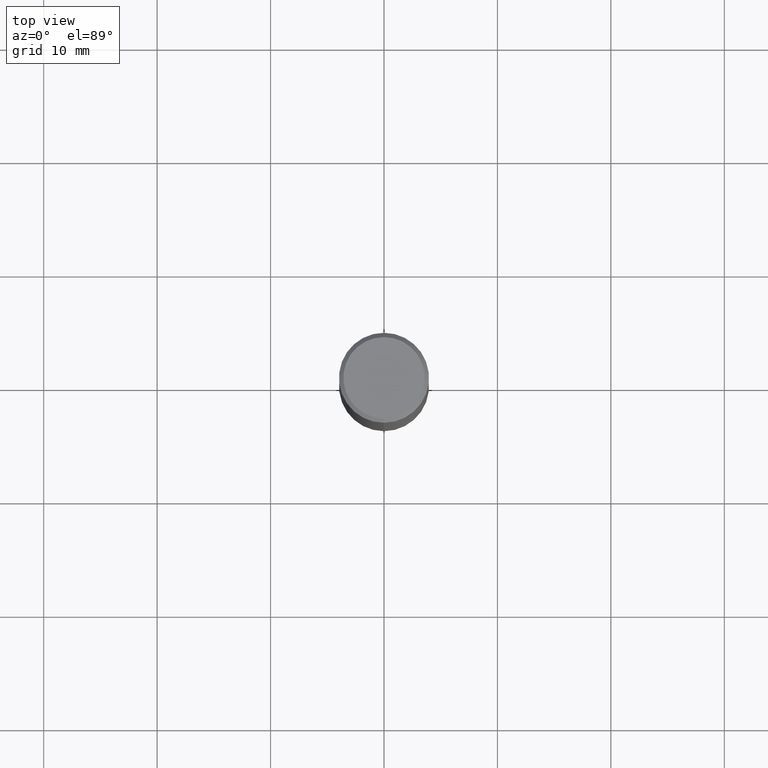
[diagram: clean part render]
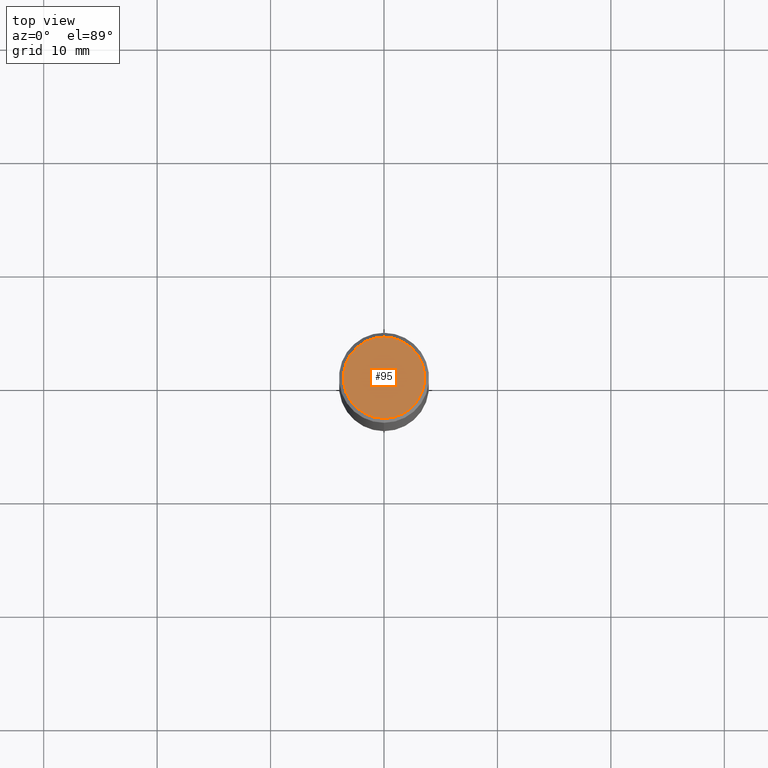
[diagram: same view with one face highlighted and labeled with its STEP entity id]
A machine part, top view. The second image highlights one B-rep face of the part: STEP entity #95.
In plain terms, the highlighted planar face has unit normal (0, -0, -1).
Its self-contained STEP definition (entity closure, byte-faithful):
#13 = PLANE ( 'NONE',  #267 ) ;
#50 = DIRECTION ( 'NONE',  ( 6.982962677686265922E-15, 1.000000000000000000, -3.491348242049455647E-15 ) ) ;
#61 = EDGE_LOOP ( 'NONE', ( #438, #177 ) ) ;
#84 = CARTESIAN_POINT ( 'NONE',  ( 9.863434782231850151E-16, 0.1412499999999999867, -5.152038148636808650E-16 ) ) ;
#95 = ADVANCED_FACE ( 'NONE', ( #250 ), #13, .F. ) ;
#110 = AXIS2_PLACEMENT_3D ( 'NONE', #356, #266, #156 ) ;
#118 = AXIS2_PLACEMENT_3D ( 'NONE', #417, #413, #500 ) ;
#133 = DIRECTION ( 'NONE',  ( 2.445561747179421972E-29, -3.491348242049455647E-15, -1.000000000000000000 ) ) ;
#156 = DIRECTION ( 'NONE',  ( -6.982962677686265922E-15, -1.000000000000000000, 3.491348242049456436E-15 ) ) ;
#177 = ORIENTED_EDGE ( 'NONE', *, *, #307, .T. ) ;
#214 = CIRCLE ( 'NONE', #118, 0.1412499999999999867 ) ;
#250 = FACE_OUTER_BOUND ( 'NONE', #61, .T. ) ;
#263 = VERTEX_POINT ( 'NONE', #412 ) ;
#266 = DIRECTION ( 'NONE',  ( -2.445561747179421972E-29, 3.491348242049456041E-15, 1.000000000000000000 ) ) ;
#267 = AXIS2_PLACEMENT_3D ( 'NONE', #84, #133, #50 ) ;
#306 = CIRCLE ( 'NONE', #110, 0.1412499999999999867 ) ;
#307 = EDGE_CURVE ( 'NONE', #486, #263, #214, .T. ) ;
#356 = CARTESIAN_POINT ( 'NONE',  ( 1.078535560812420020E-45, -1.539745720415049667E-31, -4.410175134839037759E-17 ) ) ;
#386 = CARTESIAN_POINT ( 'NONE',  ( -1.020499077168515012E-15, -0.1412499999999999867, 4.490511878410953232E-16 ) ) ;
#412 = CARTESIAN_POINT ( 'NONE',  ( 1.038715698305832292E-15, 0.1412499999999999867, -5.372546905378760784E-16 ) ) ;
#413 = DIRECTION ( 'NONE',  ( -2.445561747179421972E-29, 3.491348242049456041E-15, 1.000000000000000000 ) ) ;
#417 = CARTESIAN_POINT ( 'NONE',  ( 1.078535560812420020E-45, -1.539745720415049667E-31, -4.410175134839037759E-17 ) ) ;
#438 = ORIENTED_EDGE ( 'NONE', *, *, #485, .T. ) ;
#485 = EDGE_CURVE ( 'NONE', #263, #486, #306, .T. ) ;
#486 = VERTEX_POINT ( 'NONE', #386 ) ;
#500 = DIRECTION ( 'NONE',  ( -6.982962677686265922E-15, -1.000000000000000000, 3.491348242049456436E-15 ) ) ;